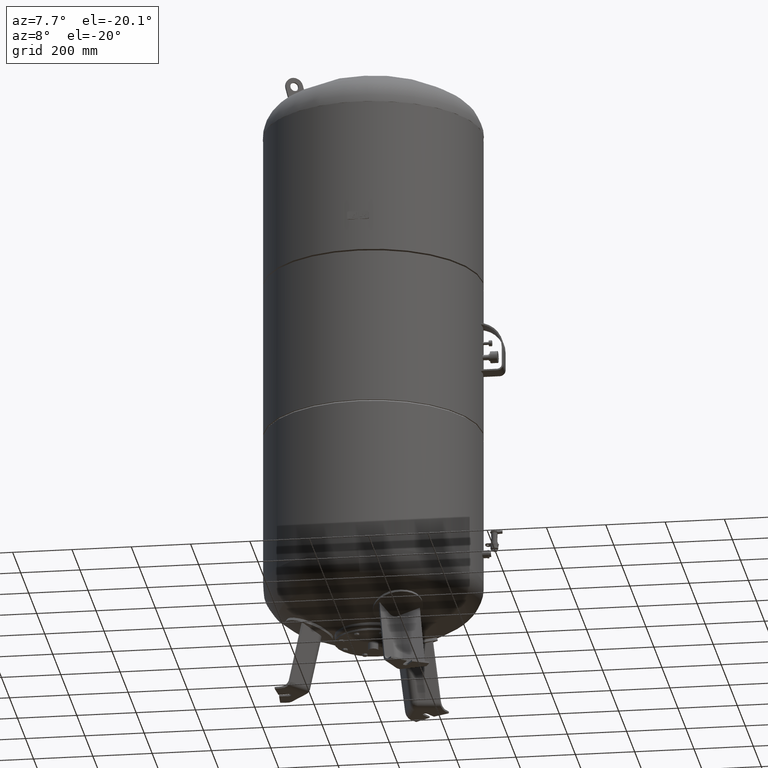
[diagram: clean part render]
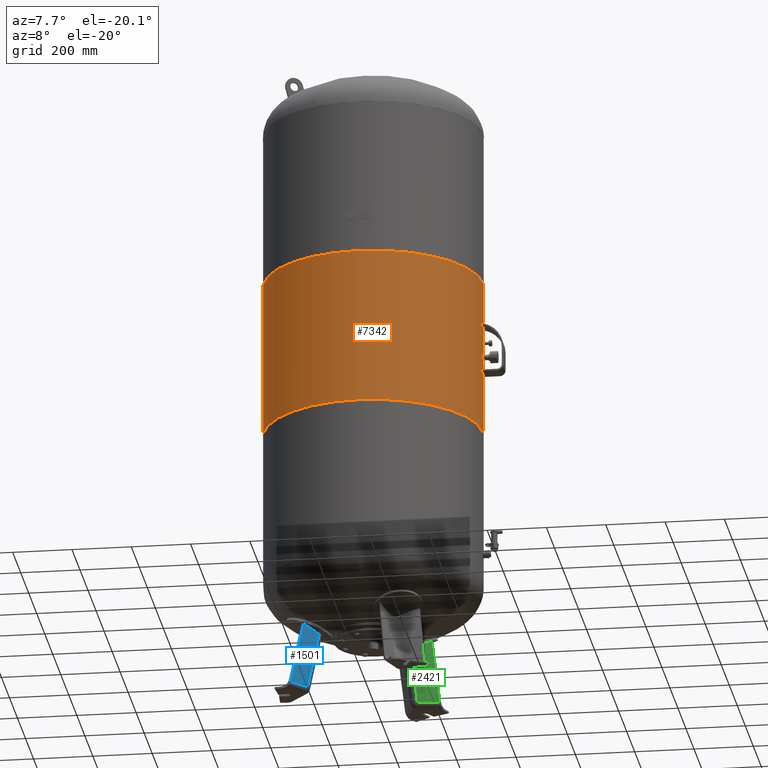
[diagram: same view with three faces highlighted in distinct colors, each labeled with its STEP entity id]
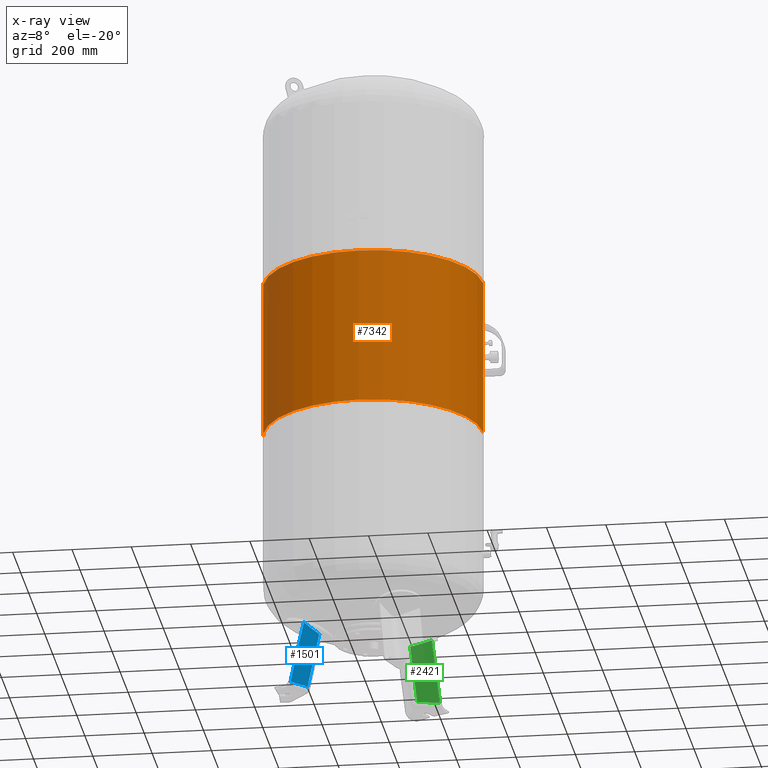
[diagram: x-ray of the same camera — body ghosted, the three highlighted faces saturated]
A machine part, auxiliary view with three faces highlighted in distinct colors.
The next image is the same camera in x-ray (body ghosted, the three faces saturated) — at least one of them is partly hidden behind the body in this view.
Their STEP definitions:

[orange] entity #7342 — the highlighted cylindrical surface (partial cylindrical patch) has radius 370 mm, axis along (0, 0, 1).
#7301=CARTESIAN_POINT('',(-3.944305E-030,0.0,1168.999999999999800));
#7302=DIRECTION('',(2.096478E-017,0.0,1.0));
#7303=DIRECTION('',(1.0,0.0,0.0));
#7304=AXIS2_PLACEMENT_3D('',#7301,#7302,#7303);
#7305=CYLINDRICAL_SURFACE('',#7304,369.999999999999430);
#7306=CARTESIAN_POINT('',(369.999999999999550,0.0,1434.333333333333300));
#7307=VERTEX_POINT('',#7306);
#7308=CARTESIAN_POINT('',(369.999999999999370,0.0,903.666666666666520));
#7309=VERTEX_POINT('',#7308);
#7310=CARTESIAN_POINT('',(369.999999999999550,0.0,1434.333333333333300));
#7311=DIRECTION('',(0.0,0.0,-1.0));
#7312=VECTOR('',#7311,530.666666666666740);
#7313=LINE('',#7310,#7312);
#7314=EDGE_CURVE('',#7307,#7309,#7313,.T.);
#7315=ORIENTED_EDGE('',*,*,#7314,.F.);
#7316=CARTESIAN_POINT('',(-369.999999999999430,-4.531044E-014,1434.333333333333300));
#7317=VERTEX_POINT('',#7316);
#7318=CARTESIAN_POINT('',(5.562655E-015,0.0,1434.333333333333300));
#7319=DIRECTION('',(0.0,0.0,1.0));
#7320=DIRECTION('',(1.0,0.0,0.0));
#7321=AXIS2_PLACEMENT_3D('',#7318,#7319,#7320);
#7322=CIRCLE('',#7321,369.999999999999550);
#7323=EDGE_CURVE('',#7317,#7307,#7322,.T.);
#7324=ORIENTED_EDGE('',*,*,#7323,.F.);
#7325=CARTESIAN_POINT('',(-369.999999999999430,-4.531044E-014,903.666666666666400));
#7326=VERTEX_POINT('',#7325);
#7327=CARTESIAN_POINT('',(-369.999999999999430,-4.531044E-014,1434.333333333333300));
#7328=DIRECTION('',(0.0,0.0,-1.0));
#7329=VECTOR('',#7328,530.666666666666860);
#7330=LINE('',#7327,#7329);
#7331=EDGE_CURVE('',#7317,#7326,#7330,.T.);
#7332=ORIENTED_EDGE('',*,*,#7331,.T.);
#7333=CARTESIAN_POINT('',(-5.562655E-015,0.0,903.666666666666400));
#7334=DIRECTION('',(0.0,0.0,1.0));
#7335=DIRECTION('',(1.0,0.0,0.0));
#7336=AXIS2_PLACEMENT_3D('',#7333,#7334,#7335);
#7337=CIRCLE('',#7336,369.999999999999370);
#7338=EDGE_CURVE('',#7326,#7309,#7337,.T.);
#7339=ORIENTED_EDGE('',*,*,#7338,.T.);
#7340=EDGE_LOOP('',(#7315,#7324,#7332,#7339));
#7341=FACE_OUTER_BOUND('',#7340,.T.);
#7342=ADVANCED_FACE('',(#7341),#7305,.T.);

[blue] entity #1501 — the highlighted planar face has unit normal (0.7471, -0.6455, -0.1588).
#1274=CARTESIAN_POINT('',(-219.470961811045530,-16.136450826554533,21.029948423057281));
#1275=VERTEX_POINT('',#1274);
#1348=CARTESIAN_POINT('',(-224.586297198034170,-73.500000000000071,230.120878968208870));
#1349=VERTEX_POINT('',#1348);
#1357=CARTESIAN_POINT('',(-180.065279163033410,-16.136450826554555,206.419109493446830));
#1358=VERTEX_POINT('',#1357);
#1359=CARTESIAN_POINT('',(-180.065279163033410,-16.136450826554555,206.419109493446830));
#1360=CARTESIAN_POINT('',(-182.257954077352650,-18.913416046005487,207.390483448243740));
#1361=CARTESIAN_POINT('',(-184.449454810698200,-21.696926014053545,208.393982911335000));
#1362=CARTESIAN_POINT('',(-191.117210884413030,-30.188304126259357,211.538240111227370));
#1363=CARTESIAN_POINT('',(-195.590355272951600,-35.915460153680840,213.772030183208220));
#1364=CARTESIAN_POINT('',(-208.270124671794660,-52.229069748678498,220.425795489886210));
#1365=CARTESIAN_POINT('',(-216.458147537310030,-62.858036945115764,225.106085466333270));
#1366=CARTESIAN_POINT('',(-224.586297198034170,-73.500000000000071,230.120878968208870));
#1367=B_SPLINE_CURVE_WITH_KNOTS('',3,(#1359,#1360,#1361,#1362,#1363,#1364,#1365,#1366),.UNSPECIFIED.,.F.,.U.,(4,2,2,4),(5.453253502265779,6.515864870681246,8.687819827574995,12.681292855444173),.UNSPECIFIED.);
#1368=EDGE_CURVE('',#1358,#1349,#1367,.T.);
#1459=CARTESIAN_POINT('',(-180.065279163033410,-16.136450826554555,206.419109493446830));
#1460=DIRECTION('',(-0.207911690817760,1.124687E-016,-0.978147600733805));
#1461=VECTOR('',#1460,189.530865210230840);
#1462=LINE('',#1459,#1461);
#1463=EDGE_CURVE('',#1358,#1275,#1462,.T.);
#1478=CARTESIAN_POINT('',(-224.397581157592530,6.676759E-016,-67.735293817669458));
#1479=DIRECTION('',(0.747104967402682,-0.645458033062182,-0.158802063077709));
#1480=DIRECTION('',(-0.207911690817760,1.197624E-016,-0.978147600733806));
#1481=AXIS2_PLACEMENT_3D('',#1478,#1479,#1480);
#1482=PLANE('',#1481);
#1483=CARTESIAN_POINT('',(-269.029946471096990,-73.500000000000014,21.029948423057284));
#1484=VERTEX_POINT('',#1483);
#1485=CARTESIAN_POINT('',(-269.029946471096990,-73.500000000000014,21.029948423057284));
#1486=DIRECTION('',(0.207911690817759,-2.659190E-016,0.978147600733806));
#1487=VECTOR('',#1486,213.762146314412800);
#1488=LINE('',#1485,#1487);
#1489=EDGE_CURVE('',#1484,#1349,#1488,.T.);
#1490=ORIENTED_EDGE('',*,*,#1489,.F.);
#1491=CARTESIAN_POINT('',(-219.470961811045530,-16.136450826554533,21.029948423057281));
#1492=DIRECTION('',(-0.653753882232529,-0.756707249513243,4.686537E-017));
#1493=VECTOR('',#1492,75.806792138366546);
#1494=LINE('',#1491,#1493);
#1495=EDGE_CURVE('',#1275,#1484,#1494,.T.);
#1496=ORIENTED_EDGE('',*,*,#1495,.F.);
#1497=ORIENTED_EDGE('',*,*,#1463,.F.);
#1498=ORIENTED_EDGE('',*,*,#1368,.T.);
#1499=EDGE_LOOP('',(#1490,#1496,#1497,#1498));
#1500=FACE_OUTER_BOUND('',#1499,.T.);
#1501=ADVANCED_FACE('',(#1500),#1482,.T.);

[green] entity #2421 — the highlighted planar face has unit normal (0.1854, -0.9697, -0.1588).
#2338=CARTESIAN_POINT('',(104.007215924231370,147.872880681446420,206.419109493446830));
#2339=VERTEX_POINT('',#2338);
#2355=CARTESIAN_POINT('',(175.946015777173330,157.747438715379420,230.120878968208760));
#2356=VERTEX_POINT('',#2355);
#2357=CARTESIAN_POINT('',(175.946015777173330,157.747438715379420,230.120878968208760));
#2358=CARTESIAN_POINT('',(162.665730595146040,156.029236150872580,225.106085466333040));
#2359=CARTESIAN_POINT('',(149.366763554282470,154.252683940787220,220.425795489885990));
#2360=CARTESIAN_POINT('',(128.898878518171440,151.428486324759380,213.772030183207990));
#2361=CARTESIAN_POINT('',(121.702443712717980,150.418207663199780,211.538240111227740));
#2362=CARTESIAN_POINT('',(111.014816517551340,148.889450573227690,208.393982911335310));
#2363=CARTESIAN_POINT('',(107.508475806861280,148.383310249762330,207.390483448243770));
#2364=CARTESIAN_POINT('',(104.007215924231370,147.872880681446420,206.419109493446830));
#2365=B_SPLINE_CURVE_WITH_KNOTS('',3,(#2357,#2358,#2359,#2360,#2361,#2362,#2363,#2364),.UNSPECIFIED.,.F.,.U.,(4,2,2,4),(536.762478861198470,540.755951889067660,542.927906845961390,543.990518214376830),.UNSPECIFIED.);
#2366=EDGE_CURVE('',#2356,#2339,#2365,.T.);
#2391=CARTESIAN_POINT('',(207.601657756952530,212.576618970567270,-67.735293817669458));
#2392=DIRECTION('',(0.185430570007244,-0.969740897595359,-0.158802063077709));
#2393=DIRECTION('',(0.103955845408880,0.180056805991956,-0.978147600733806));
#2394=AXIS2_PLACEMENT_3D('',#2391,#2392,#2393);
#2395=PLANE('',#2394);
#2396=CARTESIAN_POINT('',(123.710057248237430,181.999202908092510,21.029948423057292));
#2397=VERTEX_POINT('',#2396);
#2398=CARTESIAN_POINT('',(123.710057248237430,181.999202908092510,21.029948423057292));
#2399=DIRECTION('',(-0.103955845408880,-0.180056805991956,0.978147600733805));
#2400=VECTOR('',#2399,189.530865210230810);
#2401=LINE('',#2398,#2400);
#2402=EDGE_CURVE('',#2397,#2339,#2401,.T.);
#2403=ORIENTED_EDGE('',*,*,#2402,.F.);
#2404=CARTESIAN_POINT('',(198.167840413704770,196.236768022737640,21.029948423057292));
#2405=VERTEX_POINT('',#2404);
#2406=CARTESIAN_POINT('',(198.167840413704770,196.236768022737640,21.029948423057292));
#2407=DIRECTION('',(-0.982204642422582,-0.187813845079448,0.0));
#2408=VECTOR('',#2407,75.806792138366532);
#2409=LINE('',#2406,#2408);
#2410=EDGE_CURVE('',#2405,#2397,#2409,.T.);
#2411=ORIENTED_EDGE('',*,*,#2410,.F.);
#2412=CARTESIAN_POINT('',(198.167840413704770,196.236768022737640,21.029948423057292));
#2413=DIRECTION('',(-0.103955845408880,-0.180056805991956,0.978147600733806));
#2414=VECTOR('',#2413,213.762146314412690);
#2415=LINE('',#2412,#2414);
#2416=EDGE_CURVE('',#2405,#2356,#2415,.T.);
#2417=ORIENTED_EDGE('',*,*,#2416,.T.);
#2418=ORIENTED_EDGE('',*,*,#2366,.T.);
#2419=EDGE_LOOP('',(#2403,#2411,#2417,#2418));
#2420=FACE_OUTER_BOUND('',#2419,.T.);
#2421=ADVANCED_FACE('',(#2420),#2395,.T.);